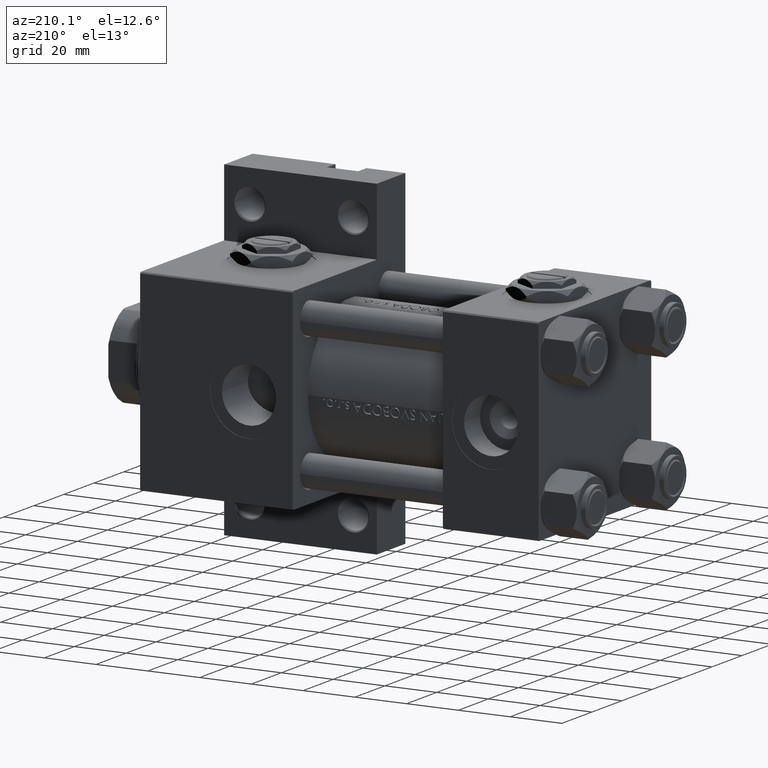
[diagram: clean part render]
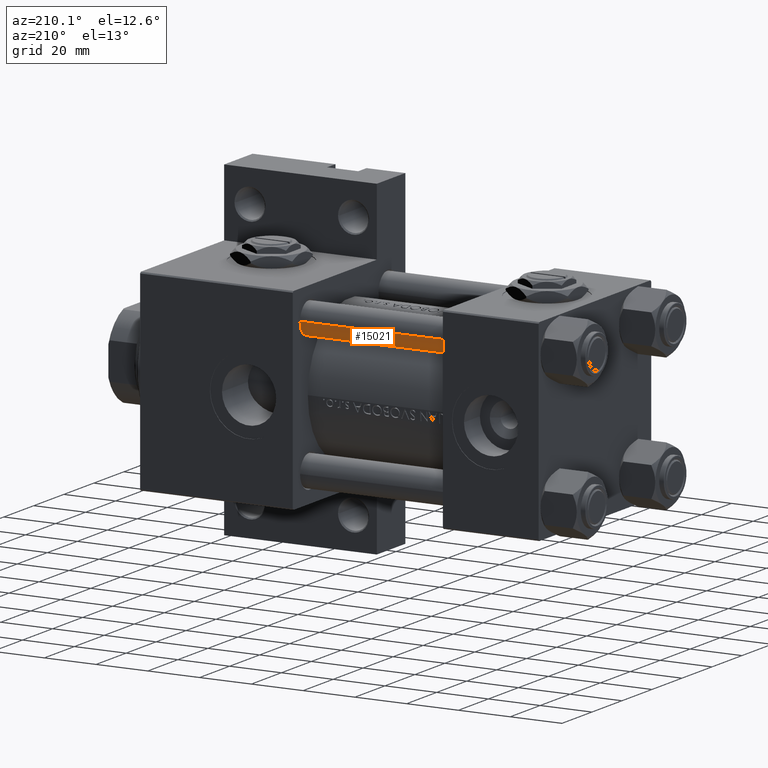
[diagram: same view with one face highlighted and labeled with its STEP entity id]
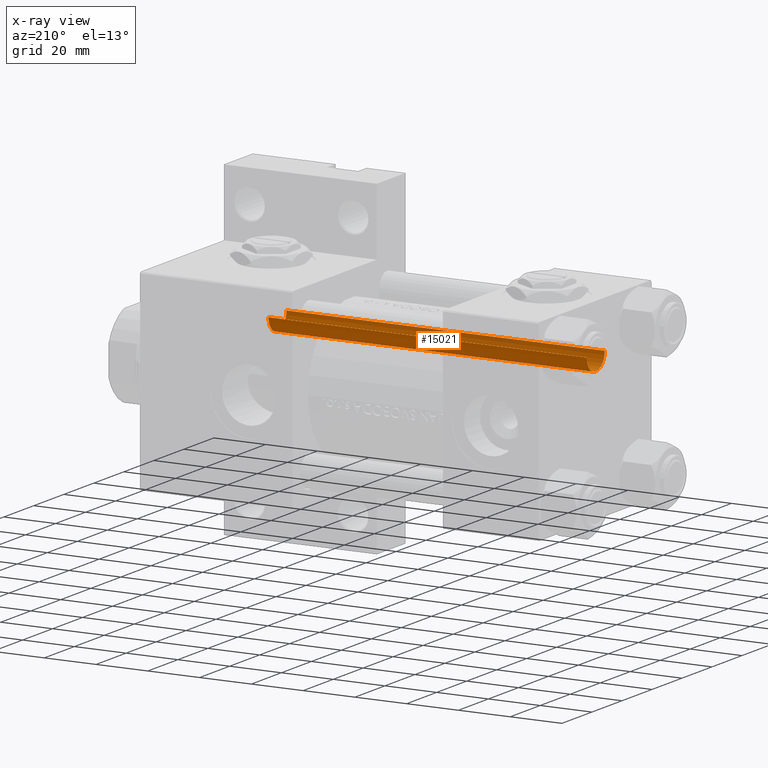
[diagram: x-ray of the same camera — body ghosted, the highlighted face saturated]
A machine part, auxiliary view. The second image highlights one B-rep face of the part: STEP entity #15021.
The next image is the same camera in x-ray: the body ghosted, the highlighted face saturated — about 0% of this face is hidden behind the body in this view.
In plain terms, the highlighted cylindrical surface (edge-blend (fillet) strip) has radius 6 mm, axis along (1, -0, 0).
Its self-contained STEP definition (entity closure, byte-faithful):
#396 = DIRECTION ( 'NONE',  ( -0.000000000000000000, -0.000000000000000000, 1.000000000000000000 ) ) ;
#953 = LINE ( 'NONE', #38182, #26044 ) ;
#3203 = DIRECTION ( 'NONE',  ( -0.000000000000000000, -0.000000000000000000, -1.000000000000000000 ) ) ;
#4872 = DIRECTION ( 'NONE',  ( 0.000000000000000000, 0.000000000000000000, -1.000000000000000000 ) ) ;
#6215 = VERTEX_POINT ( 'NONE', #22895 ) ;
#6245 = LINE ( 'NONE', #29403, #46180 ) ;
#6951 = FACE_OUTER_BOUND ( 'NONE', #46419, .T. ) ;
#7182 = CIRCLE ( 'NONE', #9590, 6.000000000000000888 ) ;
#7969 = ORIENTED_EDGE ( 'NONE', *, *, #49588, .T. ) ;
#8981 = CARTESIAN_POINT ( 'NONE',  ( 6.000000000000000888, 7.347880794884120722E-16, 123.5000000000000426 ) ) ;
#9590 = AXIS2_PLACEMENT_3D ( 'NONE', #20232, #4872, #35551 ) ;
#11248 = CYLINDRICAL_SURFACE ( 'NONE', #39144, 6.000000000000000888 ) ;
#13809 = DIRECTION ( 'NONE',  ( -0.000000000000000000, -0.000000000000000000, -1.000000000000000000 ) ) ;
#15021 = ADVANCED_FACE ( 'NONE', ( #6951 ), #11248, .T. ) ;
#18051 = VERTEX_POINT ( 'NONE', #18647 ) ;
#18647 = CARTESIAN_POINT ( 'NONE',  ( -6.000000000000000888, 0.000000000000000000, 123.5000000000000426 ) ) ;
#20232 = CARTESIAN_POINT ( 'NONE',  ( 0.000000000000000000, 0.000000000000000000, 123.5000000000000426 ) ) ;
#21811 = CARTESIAN_POINT ( 'NONE',  ( 0.000000000000000000, 0.000000000000000000, 124.0000000000000000 ) ) ;
#22302 = DIRECTION ( 'NONE',  ( -1.000000000000000000, 0.000000000000000000, 0.000000000000000000 ) ) ;
#22895 = CARTESIAN_POINT ( 'NONE',  ( 6.000000000000000888, 7.347880794884120722E-16, 0.4999999999999865663 ) ) ;
#24115 = AXIS2_PLACEMENT_3D ( 'NONE', #24232, #396, #47356 ) ;
#24232 = CARTESIAN_POINT ( 'NONE',  ( 0.000000000000000000, 0.000000000000000000, 0.4999999999999865663 ) ) ;
#26044 = VECTOR ( 'NONE', #34897, 1000.000000000000000 ) ;
#29403 = CARTESIAN_POINT ( 'NONE',  ( -6.000000000000000888, 0.000000000000000000, 124.0000000000000000 ) ) ;
#30311 = VERTEX_POINT ( 'NONE', #38150 ) ;
#34322 = EDGE_CURVE ( 'NONE', #35396, #6215, #953, .T. ) ;
#34897 = DIRECTION ( 'NONE',  ( -0.000000000000000000, -0.000000000000000000, -1.000000000000000000 ) ) ;
#35147 = ORIENTED_EDGE ( 'NONE', *, *, #37101, .F. ) ;
#35396 = VERTEX_POINT ( 'NONE', #8981 ) ;
#35551 = DIRECTION ( 'NONE',  ( 1.000000000000000000, 0.000000000000000000, 0.000000000000000000 ) ) ;
#37101 = EDGE_CURVE ( 'NONE', #18051, #30311, #6245, .T. ) ;
#38150 = CARTESIAN_POINT ( 'NONE',  ( -6.000000000000000888, 0.000000000000000000, 0.4999999999999865663 ) ) ;
#38182 = CARTESIAN_POINT ( 'NONE',  ( 6.000000000000000888, 7.347880794884120722E-16, 124.0000000000000000 ) ) ;
#39144 = AXIS2_PLACEMENT_3D ( 'NONE', #21811, #3203, #22302 ) ;
#41400 = ORIENTED_EDGE ( 'NONE', *, *, #34322, .T. ) ;
#44358 = EDGE_CURVE ( 'NONE', #18051, #35396, #7182, .T. ) ;
#45817 = CIRCLE ( 'NONE', #24115, 6.000000000000000888 ) ;
#46180 = VECTOR ( 'NONE', #13809, 1000.000000000000000 ) ;
#46419 = EDGE_LOOP ( 'NONE', ( #49007, #41400, #7969, #35147 ) ) ;
#47356 = DIRECTION ( 'NONE',  ( 1.000000000000000000, 0.000000000000000000, 0.000000000000000000 ) ) ;
#49007 = ORIENTED_EDGE ( 'NONE', *, *, #44358, .T. ) ;
#49588 = EDGE_CURVE ( 'NONE', #6215, #30311, #45817, .T. ) ;